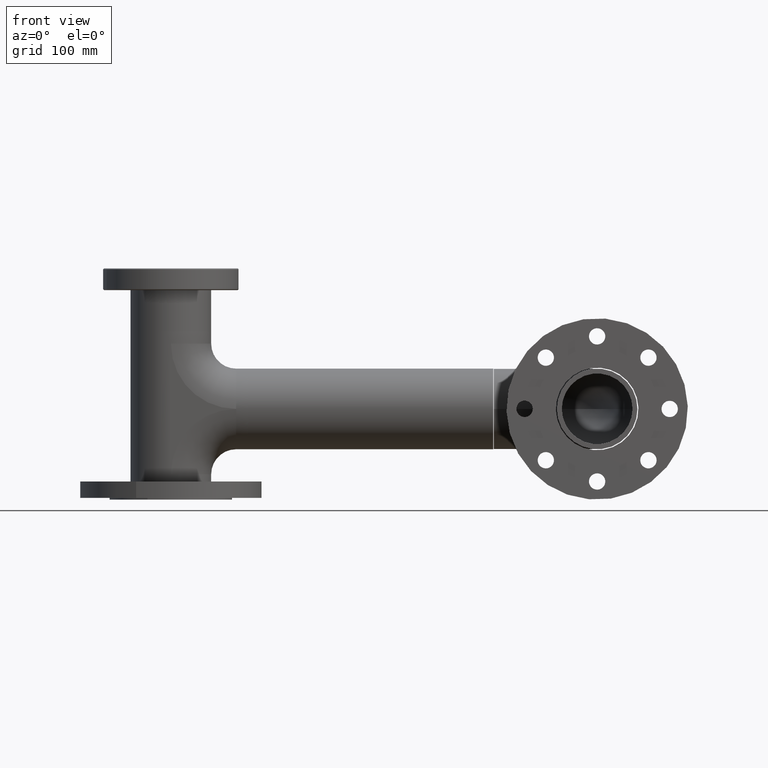
[diagram: clean part render]
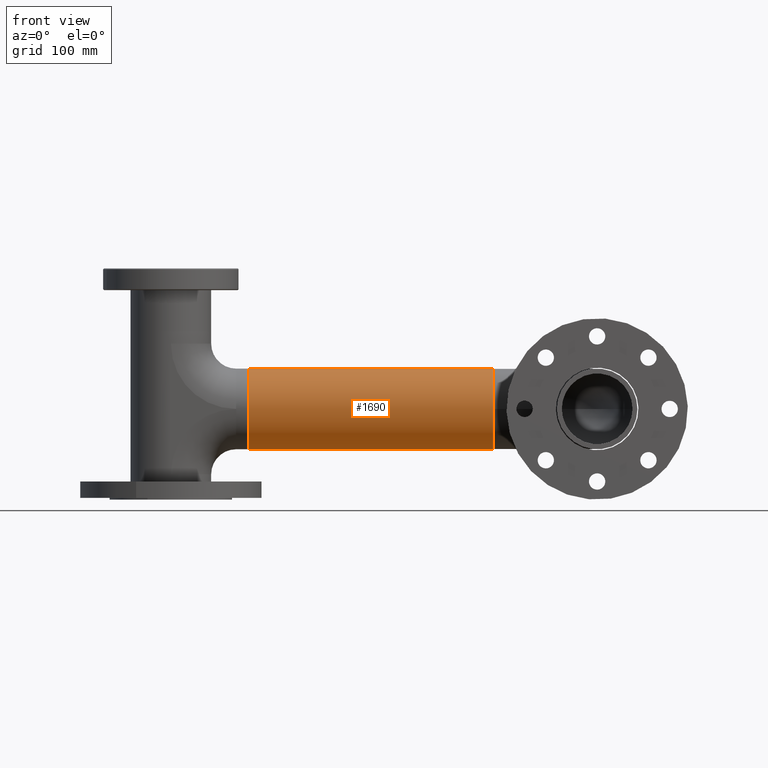
[diagram: same view with one face highlighted and labeled with its STEP entity id]
A machine part, front view. The second image highlights one B-rep face of the part: STEP entity #1690.
In plain terms, the highlighted cylindrical surface (partial cylindrical patch) has radius 44.45 mm, axis along (1, 0, 0).
Its self-contained STEP definition (entity closure, byte-faithful):
#114 = LINE ( 'NONE', #1161, #1358 ) ;
#211 = CARTESIAN_POINT ( 'NONE',  ( -384.2999999999999545, 270.0000000000076739, -44.45000000000002416 ) ) ;
#222 = DIRECTION ( 'NONE',  ( -1.000000000000000000, 0.000000000000000000, 0.000000000000000000 ) ) ;
#458 = DIRECTION ( 'NONE',  ( 1.000000000000000000, -0.000000000000000000, -0.000000000000000000 ) ) ;
#478 = CARTESIAN_POINT ( 'NONE',  ( -114.5000000000007958, 270.0000000000076739, 0.000000000000000000 ) ) ;
#488 = DIRECTION ( 'NONE',  ( 0.000000000000000000, 0.000000000000000000, -1.000000000000000000 ) ) ;
#507 = FACE_OUTER_BOUND ( 'NONE', #764, .T. ) ;
#762 = CARTESIAN_POINT ( 'NONE',  ( -384.2999999999999545, 270.0000000000076739, 44.45000000000002416 ) ) ;
#764 = EDGE_LOOP ( 'NONE', ( #2628, #2991, #1238, #3175 ) ) ;
#780 = LINE ( 'NONE', #762, #874 ) ;
#862 = CARTESIAN_POINT ( 'NONE',  ( -384.2999999999999545, 270.0000000000076739, 0.000000000000000000 ) ) ;
#868 = AXIS2_PLACEMENT_3D ( 'NONE', #2342, #458, #488 ) ;
#874 = VECTOR ( 'NONE', #993, 1000.000000000000000 ) ;
#993 = DIRECTION ( 'NONE',  ( 1.000000000000000000, -0.000000000000000000, -0.000000000000000000 ) ) ;
#1012 = VERTEX_POINT ( 'NONE', #2534 ) ;
#1097 = CIRCLE ( 'NONE', #1483, 44.45000000000001705 ) ;
#1161 = CARTESIAN_POINT ( 'NONE',  ( -384.2999999999999545, 270.0000000000076739, -44.45000000000002416 ) ) ;
#1238 = ORIENTED_EDGE ( 'NONE', *, *, #1611, .T. ) ;
#1272 = DIRECTION ( 'NONE',  ( 0.000000000000000000, -1.000000000000000000, 0.000000000000000000 ) ) ;
#1312 = CYLINDRICAL_SURFACE ( 'NONE', #868, 44.45000000000002416 ) ;
#1341 = VERTEX_POINT ( 'NONE', #3228 ) ;
#1358 = VECTOR ( 'NONE', #2220, 1000.000000000000000 ) ;
#1483 = AXIS2_PLACEMENT_3D ( 'NONE', #478, #222, #1272 ) ;
#1580 = AXIS2_PLACEMENT_3D ( 'NONE', #862, #2956, #2743 ) ;
#1611 = EDGE_CURVE ( 'NONE', #2017, #3089, #114, .T. ) ;
#1690 = ADVANCED_FACE ( 'NONE', ( #507 ), #1312, .T. ) ;
#1803 = EDGE_CURVE ( 'NONE', #1012, #1341, #780, .T. ) ;
#2017 = VERTEX_POINT ( 'NONE', #211 ) ;
#2163 = EDGE_CURVE ( 'NONE', #2017, #1012, #3088, .T. ) ;
#2220 = DIRECTION ( 'NONE',  ( 1.000000000000000000, -0.000000000000000000, -0.000000000000000000 ) ) ;
#2342 = CARTESIAN_POINT ( 'NONE',  ( -384.2999999999999545, 270.0000000000076739, 0.000000000000000000 ) ) ;
#2431 = CARTESIAN_POINT ( 'NONE',  ( -114.5000000000007958, 270.0000000000076739, -44.45000000000002416 ) ) ;
#2534 = CARTESIAN_POINT ( 'NONE',  ( -384.2999999999999545, 270.0000000000076739, 44.45000000000002416 ) ) ;
#2628 = ORIENTED_EDGE ( 'NONE', *, *, #1803, .F. ) ;
#2743 = DIRECTION ( 'NONE',  ( 0.000000000000000000, -1.000000000000000000, 0.000000000000000000 ) ) ;
#2956 = DIRECTION ( 'NONE',  ( -1.000000000000000000, 0.000000000000000000, 0.000000000000000000 ) ) ;
#2991 = ORIENTED_EDGE ( 'NONE', *, *, #2163, .F. ) ;
#3028 = EDGE_CURVE ( 'NONE', #3089, #1341, #1097, .T. ) ;
#3088 = CIRCLE ( 'NONE', #1580, 44.45000000000001705 ) ;
#3089 = VERTEX_POINT ( 'NONE', #2431 ) ;
#3175 = ORIENTED_EDGE ( 'NONE', *, *, #3028, .T. ) ;
#3228 = CARTESIAN_POINT ( 'NONE',  ( -114.5000000000007958, 270.0000000000076739, 44.45000000000002416 ) ) ;